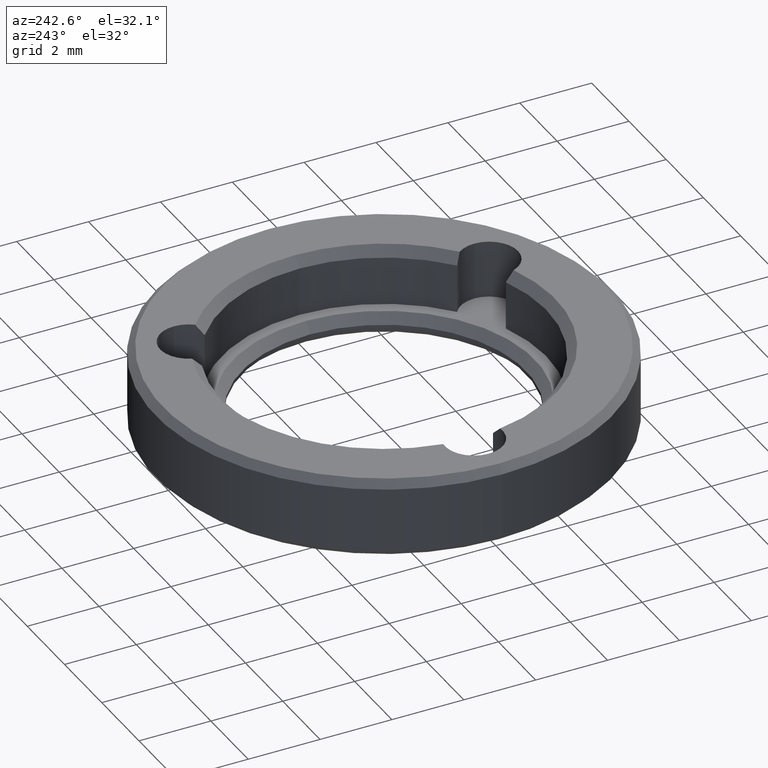
[diagram: clean part render]
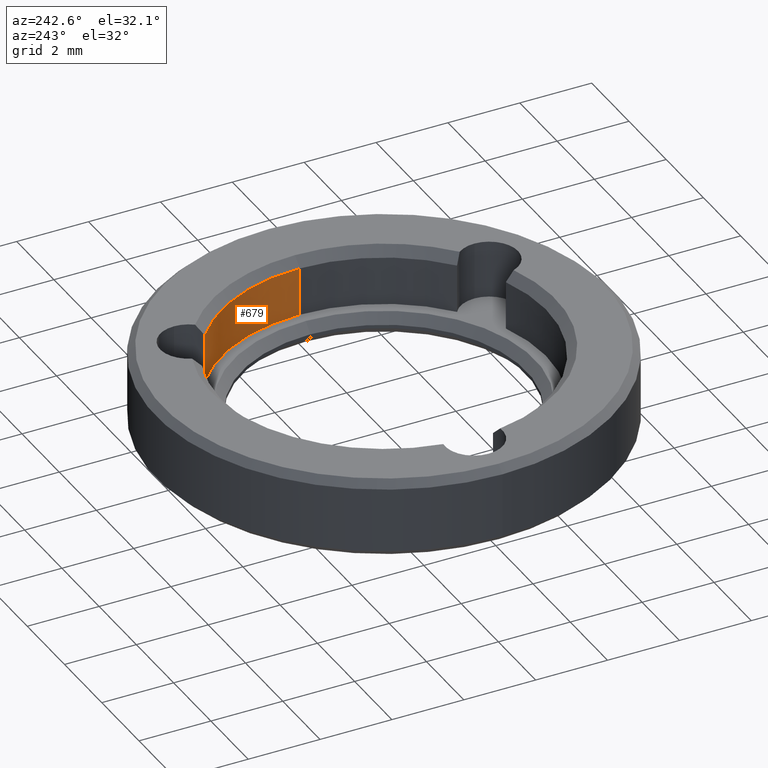
[diagram: same view with one face highlighted and labeled with its STEP entity id]
A machine part, auxiliary view. The second image highlights one B-rep face of the part: STEP entity #679.
In plain terms, the highlighted cylindrical surface (partial cylindrical patch) has radius 4.525 mm, axis along (-0, -0, 1).
Its self-contained STEP definition (entity closure, byte-faithful):
#7 = FACE_OUTER_BOUND ( 'NONE', #592, .T. ) ;
#82 = VERTEX_POINT ( 'NONE', #700 ) ;
#96 = CARTESIAN_POINT ( 'NONE',  ( 2.854015513596333875, 3.511441363336634147, 1.400000000000000133 ) ) ;
#140 = EDGE_CURVE ( 'NONE', #674, #82, #884, .T. ) ;
#144 = CARTESIAN_POINT ( 'NONE',  ( 4.525000000000000355, 0.000000000000000000, 1.949999999999996403 ) ) ;
#169 = LINE ( 'NONE', #96, #411 ) ;
#173 = ORIENTED_EDGE ( 'NONE', *, *, #356, .T. ) ;
#189 = EDGE_CURVE ( 'NONE', #385, #462, #515, .T. ) ;
#227 = AXIS2_PLACEMENT_3D ( 'NONE', #765, #368, #571 ) ;
#235 = DIRECTION ( 'NONE',  ( 0.000000000000000000, 0.000000000000000000, 1.000000000000000000 ) ) ;
#244 = DIRECTION ( 'NONE',  ( -0.000000000000000000, -0.000000000000000000, 1.000000000000000000 ) ) ;
#254 = CARTESIAN_POINT ( 'NONE',  ( 4.525000000000000355, 0.000000000000000000, 0.6000000000000000888 ) ) ;
#308 = CARTESIAN_POINT ( 'NONE',  ( 4.525000000000000355, 0.000000000000000000, 0.6000000000000000888 ) ) ;
#338 = DIRECTION ( 'NONE',  ( 1.000000000000000000, 0.000000000000000000, 0.000000000000000000 ) ) ;
#356 = EDGE_CURVE ( 'NONE', #385, #674, #885, .T. ) ;
#368 = DIRECTION ( 'NONE',  ( -0.000000000000000000, -0.000000000000000000, 1.000000000000000000 ) ) ;
#369 = CARTESIAN_POINT ( 'NONE',  ( 0.000000000000000000, 0.000000000000000000, 0.6000000000000000888 ) ) ;
#378 = EDGE_CURVE ( 'NONE', #82, #462, #169, .T. ) ;
#385 = VERTEX_POINT ( 'NONE', #308 ) ;
#411 = VECTOR ( 'NONE', #725, 1000.000000000000000 ) ;
#462 = VERTEX_POINT ( 'NONE', #802 ) ;
#492 = CYLINDRICAL_SURFACE ( 'NONE', #227, 4.525000000000000355 ) ;
#507 = DIRECTION ( 'NONE',  ( 1.000000000000000000, 0.000000000000000000, 0.000000000000000000 ) ) ;
#508 = ORIENTED_EDGE ( 'NONE', *, *, #378, .T. ) ;
#515 = CIRCLE ( 'NONE', #532, 4.525000000000000355 ) ;
#517 = ORIENTED_EDGE ( 'NONE', *, *, #189, .F. ) ;
#521 = ORIENTED_EDGE ( 'NONE', *, *, #140, .T. ) ;
#532 = AXIS2_PLACEMENT_3D ( 'NONE', #369, #235, #507 ) ;
#571 = DIRECTION ( 'NONE',  ( 1.000000000000000000, 0.000000000000000000, 0.000000000000000000 ) ) ;
#592 = EDGE_LOOP ( 'NONE', ( #517, #173, #521, #508 ) ) ;
#626 = VECTOR ( 'NONE', #244, 1000.000000000000000 ) ;
#674 = VERTEX_POINT ( 'NONE', #144 ) ;
#679 = ADVANCED_FACE ( 'NONE', ( #7 ), #492, .F. ) ;
#689 = DIRECTION ( 'NONE',  ( 0.000000000000000000, 0.000000000000000000, 1.000000000000000000 ) ) ;
#700 = CARTESIAN_POINT ( 'NONE',  ( 2.854015513596336096, 3.511441363336635479, 1.949999999999996403 ) ) ;
#725 = DIRECTION ( 'NONE',  ( 0.000000000000000000, -0.000000000000000000, -1.000000000000000000 ) ) ;
#765 = CARTESIAN_POINT ( 'NONE',  ( 0.000000000000000000, 0.000000000000000000, 0.6000000000000000888 ) ) ;
#785 = AXIS2_PLACEMENT_3D ( 'NONE', #897, #689, #338 ) ;
#802 = CARTESIAN_POINT ( 'NONE',  ( 2.854015513596333875, 3.511441363336634147, 0.6000000000000003109 ) ) ;
#884 = CIRCLE ( 'NONE', #785, 4.525000000000000355 ) ;
#885 = LINE ( 'NONE', #254, #626 ) ;
#897 = CARTESIAN_POINT ( 'NONE',  ( 0.000000000000000000, 0.000000000000000000, 1.949999999999996403 ) ) ;